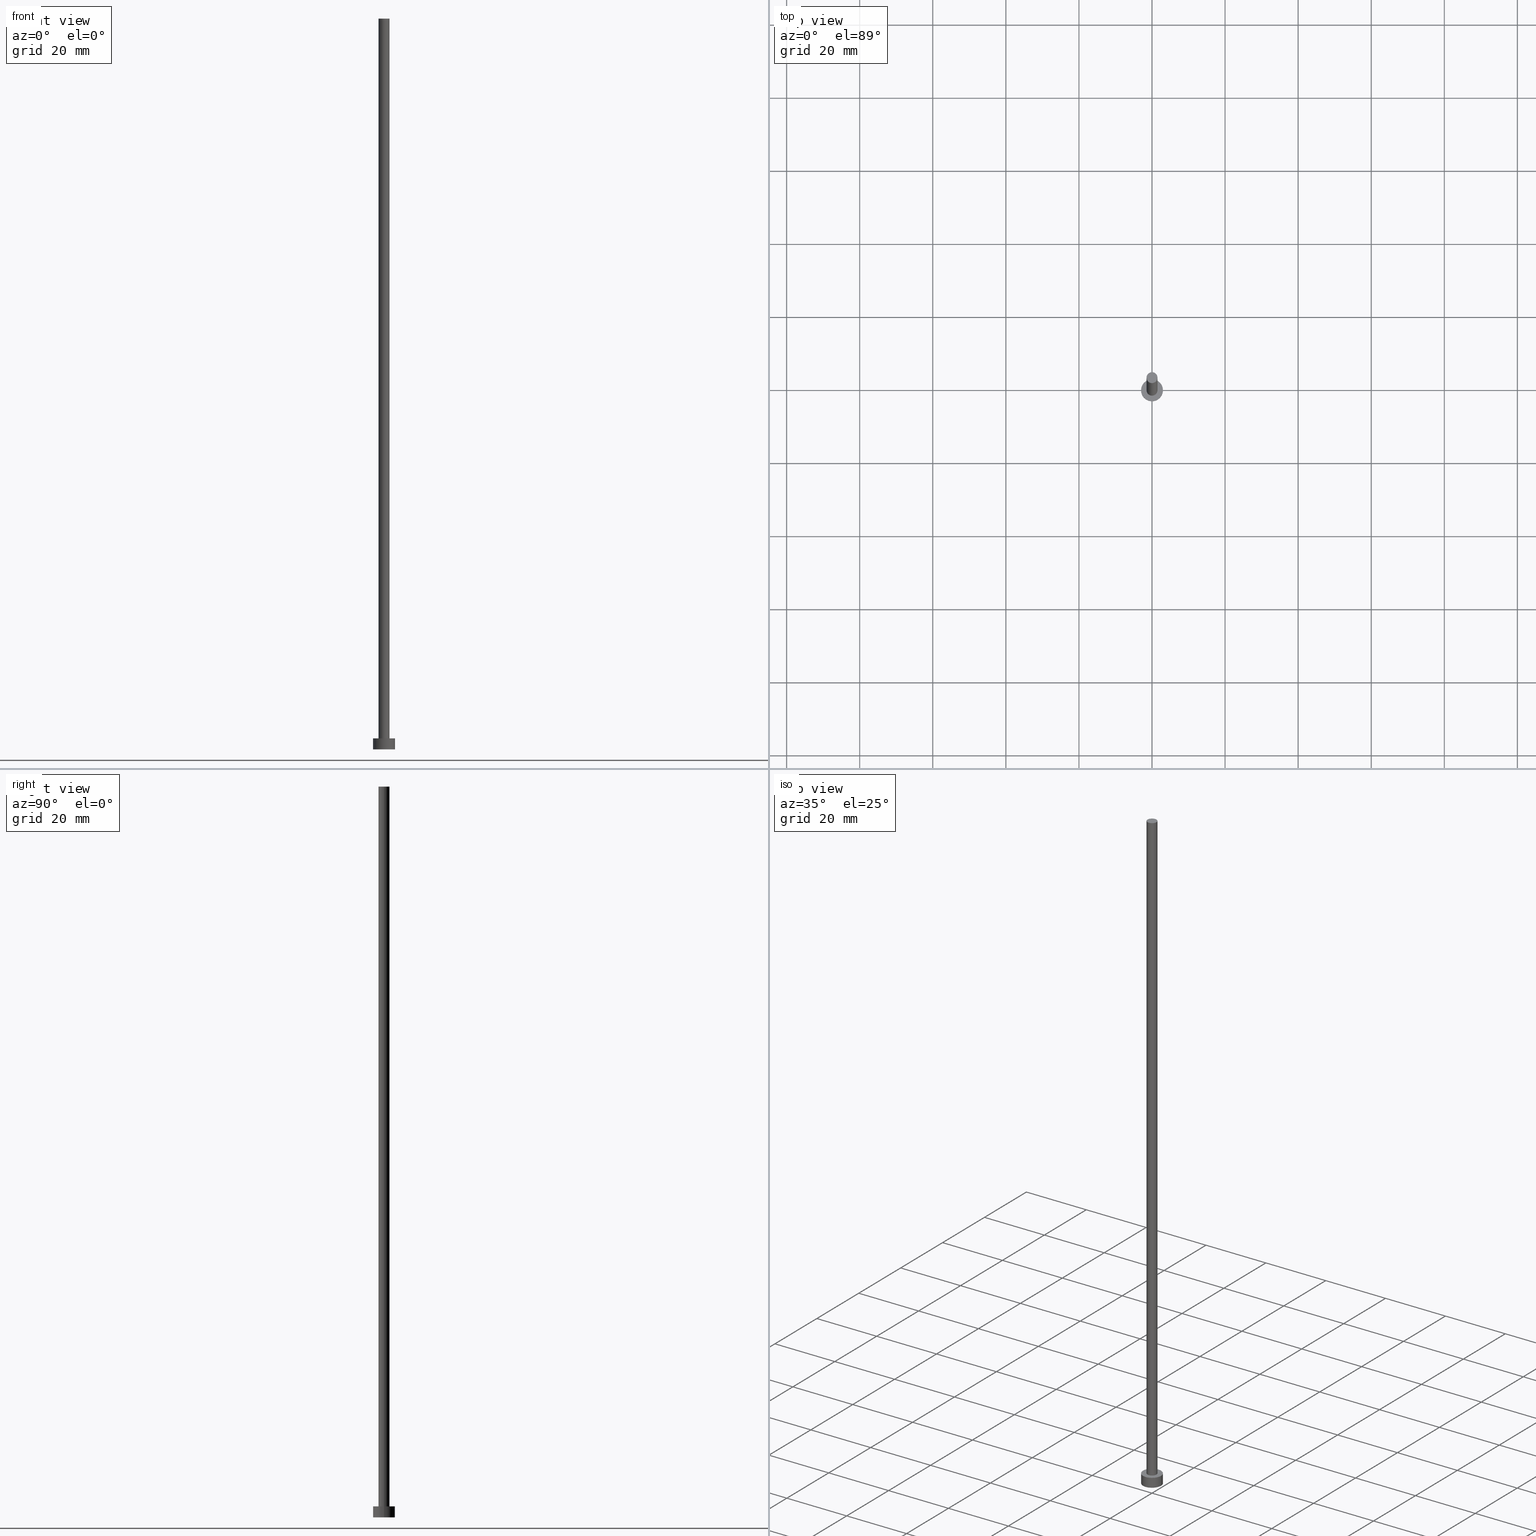
[diagram: canonical four-view strip — front | top / right | iso, engineering-drawing reading convention]
A machine part, canonical four-view strip (front | top / right | iso — engineering-drawing reading convention). The complete STEP part file that produces these views, byte-faithful:
ISO-10303-21;
HEADER;
FILE_DESCRIPTION (( 'STEP AP203' ),
    '1' );
FILE_NAME ('d742.STEP',
    '2023-02-12T12:47:12',
    ( '' ),
    ( '' ),
    'SwSTEP 2.0',
    'SolidWorks 2019',
    '' );
FILE_SCHEMA (( 'CONFIG_CONTROL_DESIGN' ));
ENDSEC;

DATA;
#1 = ORIENTED_EDGE ( 'NONE', *, *, #193, .T. ) ;
#2 = VERTEX_POINT ( 'NONE', #203 ) ;
#3 = APPLICATION_CONTEXT ( 'configuration controlled 3d designs of mechanical parts and assemblies' ) ;
#4 = CIRCLE ( 'NONE', #165, 1.500000000000000222 ) ;
#5 = ADVANCED_BREP_SHAPE_REPRESENTATION ( 'd742', ( #129, #192 ), #102 ) ;
#6 = ORIENTED_EDGE ( 'NONE', *, *, #231, .T. ) ;
#7 = CARTESIAN_POINT ( 'NONE',  ( 0.000000000000000000, 0.000000000000000000, 3.000000000000000000 ) ) ;
#8 = CARTESIAN_POINT ( 'NONE',  ( -1.500000000000000222, 0.000000000000000000, 200.0000000000000000 ) ) ;
#9 = COORDINATED_UNIVERSAL_TIME_OFFSET ( 1, 0, .AHEAD. ) ;
#10 = APPROVAL ( #182, 'NEUR�EN�' ) ;
#11 = ORIENTED_EDGE ( 'NONE', *, *, #237, .F. ) ;
#12 = DIRECTION ( 'NONE',  ( 1.000000000000000000, 0.000000000000000000, 0.000000000000000000 ) ) ;
#13 = DIRECTION ( 'NONE',  ( -0.000000000000000000, -0.000000000000000000, -1.000000000000000000 ) ) ;
#14 = EDGE_CURVE ( 'NONE', #180, #43, #105, .T. ) ;
#15 = CARTESIAN_POINT ( 'NONE',  ( 0.000000000000000000, 0.000000000000000000, 200.0000000000000000 ) ) ;
#16 = ORIENTED_EDGE ( 'NONE', *, *, #154, .F. ) ;
#17 = APPROVAL ( #200, 'NEUR�EN�' ) ;
#18 = CYLINDRICAL_SURFACE ( 'NONE', #219, 3.000000000000000444 ) ;
#19 = CARTESIAN_POINT ( 'NONE',  ( 0.000000000000000000, 0.000000000000000000, 0.000000000000000000 ) ) ;
#20 = ORIENTED_EDGE ( 'NONE', *, *, #135, .F. ) ;
#21 = CARTESIAN_POINT ( 'NONE',  ( 0.000000000000000000, 0.000000000000000000, 200.0000000000000000 ) ) ;
#22 = ADVANCED_FACE ( 'NONE', ( #48 ), #33, .T. ) ;
#23 = AXIS2_PLACEMENT_3D ( 'NONE', #19, #98, #191 ) ;
#24 = VERTEX_POINT ( 'NONE', #31 ) ;
#25 = PRODUCT_DEFINITION_SHAPE ( 'NONE', 'NONE',  #39 ) ;
#26 = APPLICATION_PROTOCOL_DEFINITION ( 'international standard', 'config_control_design', 1994, #3 ) ;
#27 = DATE_AND_TIME ( #162, #233 ) ;
#28 = DATE_AND_TIME ( #52, #84 ) ;
#29 = PERSON_AND_ORGANIZATION_ROLE ( 'design_supplier' ) ;
#30 = APPROVAL_DATE_TIME ( #28, #10 ) ;
#31 = CARTESIAN_POINT ( 'NONE',  ( 3.000000000000000444, 3.673940397442060361E-16, 0.000000000000000000 ) ) ;
#32 = APPROVAL_STATUS ( 'not_yet_approved' ) ;
#33 = PLANE ( 'NONE',  #44 ) ;
#34 = ORIENTED_EDGE ( 'NONE', *, *, #141, .F. ) ;
#35 = CC_DESIGN_PERSON_AND_ORGANIZATION_ASSIGNMENT ( #160, #229, ( #177 ) ) ;
#36 = DIRECTION ( 'NONE',  ( 1.000000000000000000, 0.000000000000000000, 0.000000000000000000 ) ) ;
#37 = AXIS2_PLACEMENT_3D ( 'NONE', #122, #123, #12 ) ;
#38 = CARTESIAN_POINT ( 'NONE',  ( 1.500000000000000222, 1.836970198721030181E-16, 200.0000000000000000 ) ) ;
#39 = PRODUCT_DEFINITION ( 'NEZN�M�', '', #41, #179 ) ;
#40 = VECTOR ( 'NONE', #13, 1000.000000000000000 ) ;
#41 = PRODUCT_DEFINITION_FORMATION_WITH_SPECIFIED_SOURCE ( 'LIBOVOLN�', '', #65, .NOT_KNOWN. ) ;
#42 = CARTESIAN_POINT ( 'NONE',  ( -3.000000000000000444, 0.000000000000000000, 3.000000000000000000 ) ) ;
#43 = VERTEX_POINT ( 'NONE', #184 ) ;
#44 = AXIS2_PLACEMENT_3D ( 'NONE', #93, #185, #169 ) ;
#45 = VECTOR ( 'NONE', #236, 1000.000000000000000 ) ;
#46 = SHAPE_DEFINITION_REPRESENTATION ( #25, #5 ) ;
#47 = DIRECTION ( 'NONE',  ( -1.000000000000000000, 0.000000000000000000, 0.000000000000000000 ) ) ;
#48 = FACE_OUTER_BOUND ( 'NONE', #149, .T. ) ;
#49 = ORIENTED_EDGE ( 'NONE', *, *, #135, .T. ) ;
#50 = PERSON_AND_ORGANIZATION ( #211, #62 ) ;
#51 = APPROVAL_ROLE ( '' ) ;
#52 = CALENDAR_DATE ( 2023, 12, 2 ) ;
#53 = DIRECTION ( 'NONE',  ( -1.000000000000000000, 0.000000000000000000, 0.000000000000000000 ) ) ;
#54 = ORIENTED_EDGE ( 'NONE', *, *, #235, .T. ) ;
#55 = VECTOR ( 'NONE', #136, 1000.000000000000000 ) ;
#56 = LOCAL_TIME ( 13, 47, 12.00000000000000000, #139 ) ;
#57 = DIRECTION ( 'NONE',  ( 1.000000000000000000, 0.000000000000000000, 0.000000000000000000 ) ) ;
#58 = CARTESIAN_POINT ( 'NONE',  ( 0.000000000000000000, 0.000000000000000000, 3.000000000000000000 ) ) ;
#59 = CARTESIAN_POINT ( 'NONE',  ( 3.000000000000000444, 3.673940397442060361E-16, 3.000000000000000000 ) ) ;
#60 = LINE ( 'NONE', #194, #55 ) ;
#61 = ORIENTED_EDGE ( 'NONE', *, *, #112, .F. ) ;
#62 = ORGANIZATION ( 'NEUR�EN�', 'NEUR�EN�', '' ) ;
#63 = CC_DESIGN_PERSON_AND_ORGANIZATION_ASSIGNMENT ( #220, #29, ( #41 ) ) ;
#64 = ORIENTED_EDGE ( 'NONE', *, *, #103, .F. ) ;
#65 = PRODUCT ( 'd742', 'd742', '', ( #168 ) ) ;
#66 = FACE_OUTER_BOUND ( 'NONE', #251, .T. ) ;
#67 = APPROVAL_ROLE ( '' ) ;
#68 = PERSON_AND_ORGANIZATION ( #211, #62 ) ;
#69 = CARTESIAN_POINT ( 'NONE',  ( -1.500000000000000222, 0.000000000000000000, 3.000000000000000000 ) ) ;
#70 = CARTESIAN_POINT ( 'NONE',  ( 3.000000000000000444, 3.673940397442060361E-16, 3.000000000000000000 ) ) ;
#71 = DIRECTION ( 'NONE',  ( -0.000000000000000000, -0.000000000000000000, -1.000000000000000000 ) ) ;
#72 = APPLICATION_PROTOCOL_DEFINITION ( 'international standard', 'config_control_design', 1994, #241 ) ;
#73 = ADVANCED_FACE ( 'NONE', ( #249 ), #18, .T. ) ;
#74 = AXIS2_PLACEMENT_3D ( 'NONE', #58, #152, #131 ) ;
#75 = CC_DESIGN_APPROVAL ( #244, ( #177 ) ) ;
#76 = EDGE_LOOP ( 'NONE', ( #16, #95 ) ) ;
#77 = VERTEX_POINT ( 'NONE', #69 ) ;
#78 = CC_DESIGN_PERSON_AND_ORGANIZATION_ASSIGNMENT ( #163, #127, ( #39 ) ) ;
#79 = LINE ( 'NONE', #173, #45 ) ;
#80 = AXIS2_PLACEMENT_3D ( 'NONE', #146, #91, #226 ) ;
#81 = DIRECTION ( 'NONE',  ( 1.000000000000000000, 0.000000000000000000, 0.000000000000000000 ) ) ;
#82 = ADVANCED_FACE ( 'NONE', ( #183 ), #228, .T. ) ;
#83 = CYLINDRICAL_SURFACE ( 'NONE', #248, 1.500000000000000222 ) ;
#84 = LOCAL_TIME ( 13, 47, 12.00000000000000000, #88 ) ;
#85 = APPROVAL_DATE_TIME ( #250, #17 ) ;
#86 = ORIENTED_EDGE ( 'NONE', *, *, #103, .T. ) ;
#87 = CALENDAR_DATE ( 2023, 12, 2 ) ;
#88 = COORDINATED_UNIVERSAL_TIME_OFFSET ( 1, 0, .AHEAD. ) ;
#89 = VERTEX_POINT ( 'NONE', #223 ) ;
#90 = DIRECTION ( 'NONE',  ( 0.000000000000000000, 0.000000000000000000, 1.000000000000000000 ) ) ;
#91 = DIRECTION ( 'NONE',  ( 0.000000000000000000, 0.000000000000000000, 1.000000000000000000 ) ) ;
#92 = PERSON_AND_ORGANIZATION_ROLE ( 'creator' ) ;
#93 = CARTESIAN_POINT ( 'NONE',  ( 0.000000000000000000, 0.000000000000000000, 200.0000000000000000 ) ) ;
#94 =( NAMED_UNIT ( * ) PLANE_ANGLE_UNIT ( ) SI_UNIT ( $, .RADIAN. ) );
#95 = ORIENTED_EDGE ( 'NONE', *, *, #193, .F. ) ;
#96 = CIRCLE ( 'NONE', #80, 3.000000000000000444 ) ;
#97 = CARTESIAN_POINT ( 'NONE',  ( 0.000000000000000000, 0.000000000000000000, 3.000000000000000000 ) ) ;
#98 = DIRECTION ( 'NONE',  ( 0.000000000000000000, 0.000000000000000000, 1.000000000000000000 ) ) ;
#99 = UNCERTAINTY_MEASURE_WITH_UNIT (LENGTH_MEASURE( 1.000000000000000082E-05 ), #158, 'distance_accuracy_value', 'NONE');
#100 = DIRECTION ( 'NONE',  ( 0.000000000000000000, 0.000000000000000000, 1.000000000000000000 ) ) ;
#101 = CC_DESIGN_SECURITY_CLASSIFICATION ( #177, ( #41 ) ) ;
#102 =( GEOMETRIC_REPRESENTATION_CONTEXT ( 3 ) GLOBAL_UNCERTAINTY_ASSIGNED_CONTEXT ( ( #99 ) ) GLOBAL_UNIT_ASSIGNED_CONTEXT ( ( #158, #94, #143 ) ) REPRESENTATION_CONTEXT ( 'NONE', 'WORKASPACE' ) );
#103 = EDGE_CURVE ( 'NONE', #161, #253, #254, .T. ) ;
#104 = DIRECTION ( 'NONE',  ( -0.000000000000000000, -0.000000000000000000, -1.000000000000000000 ) ) ;
#105 = CIRCLE ( 'NONE', #246, 1.500000000000000222 ) ;
#106 = AXIS2_PLACEMENT_3D ( 'NONE', #7, #140, #175 ) ;
#107 = DIRECTION ( 'NONE',  ( 1.000000000000000000, 0.000000000000000000, 0.000000000000000000 ) ) ;
#108 = ORIENTED_EDGE ( 'NONE', *, *, #235, .F. ) ;
#109 = DIRECTION ( 'NONE',  ( 0.000000000000000000, 0.000000000000000000, 1.000000000000000000 ) ) ;
#110 = DIRECTION ( 'NONE',  ( 0.000000000000000000, 0.000000000000000000, 1.000000000000000000 ) ) ;
#111 = ORIENTED_EDGE ( 'NONE', *, *, #112, .T. ) ;
#112 = EDGE_CURVE ( 'NONE', #253, #24, #164, .T. ) ;
#113 = DIRECTION ( 'NONE',  ( -1.000000000000000000, 0.000000000000000000, 0.000000000000000000 ) ) ;
#114 = EDGE_CURVE ( 'NONE', #253, #161, #96, .T. ) ;
#115 = DIRECTION ( 'NONE',  ( 0.000000000000000000, 0.000000000000000000, 1.000000000000000000 ) ) ;
#116 = FACE_OUTER_BOUND ( 'NONE', #151, .T. ) ;
#117 = ADVANCED_FACE ( 'NONE', ( #202, #166 ), #252, .T. ) ;
#118 = ORIENTED_EDGE ( 'NONE', *, *, #156, .F. ) ;
#119 = FACE_OUTER_BOUND ( 'NONE', #76, .T. ) ;
#120 = CALENDAR_DATE ( 2023, 12, 2 ) ;
#121 = CIRCLE ( 'NONE', #155, 3.000000000000000444 ) ;
#122 = CARTESIAN_POINT ( 'NONE',  ( 0.000000000000000000, 0.000000000000000000, 3.000000000000000000 ) ) ;
#123 = DIRECTION ( 'NONE',  ( 0.000000000000000000, 0.000000000000000000, 1.000000000000000000 ) ) ;
#124 = SECURITY_CLASSIFICATION_LEVEL ( 'unclassified' ) ;
#125 = EDGE_LOOP ( 'NONE', ( #118, #49, #6, #11 ) ) ;
#126 = AXIS2_PLACEMENT_3D ( 'NONE', #15, #144, #113 ) ;
#127 = PERSON_AND_ORGANIZATION_ROLE ( 'creator' ) ;
#128 = ORIENTED_EDGE ( 'NONE', *, *, #156, .T. ) ;
#129 = MANIFOLD_SOLID_BREP ( 'P�idat vysunut�m3', #209 ) ;
#130 = APPROVAL_PERSON_ORGANIZATION ( #50, #244, #67 ) ;
#131 = DIRECTION ( 'NONE',  ( 1.000000000000000000, 0.000000000000000000, -0.000000000000000000 ) ) ;
#132 = CC_DESIGN_DATE_AND_TIME_ASSIGNMENT ( #27, #205, ( #177 ) ) ;
#133 = CARTESIAN_POINT ( 'NONE',  ( 0.000000000000000000, 0.000000000000000000, 0.000000000000000000 ) ) ;
#134 = EDGE_LOOP ( 'NONE', ( #61, #64, #54, #201 ) ) ;
#135 = EDGE_CURVE ( 'NONE', #43, #89, #172, .T. ) ;
#136 = DIRECTION ( 'NONE',  ( -0.000000000000000000, -0.000000000000000000, -1.000000000000000000 ) ) ;
#137 = CIRCLE ( 'NONE', #23, 3.000000000000000444 ) ;
#138 = ORIENTED_EDGE ( 'NONE', *, *, #14, .F. ) ;
#139 = COORDINATED_UNIVERSAL_TIME_OFFSET ( 1, 0, .AHEAD. ) ;
#140 = DIRECTION ( 'NONE',  ( -0.000000000000000000, -0.000000000000000000, -1.000000000000000000 ) ) ;
#141 = EDGE_CURVE ( 'NONE', #77, #89, #255, .T. ) ;
#142 = DATE_AND_TIME ( #120, #56 ) ;
#143 =( NAMED_UNIT ( * ) SI_UNIT ( $, .STERADIAN. ) SOLID_ANGLE_UNIT ( ) );
#144 = DIRECTION ( 'NONE',  ( -0.000000000000000000, -0.000000000000000000, -1.000000000000000000 ) ) ;
#145 = DATE_AND_TIME ( #245, #234 ) ;
#146 = CARTESIAN_POINT ( 'NONE',  ( 0.000000000000000000, 0.000000000000000000, 3.000000000000000000 ) ) ;
#147 = PERSON_AND_ORGANIZATION ( #211, #62 ) ;
#148 = PERSON_AND_ORGANIZATION ( #211, #62 ) ;
#149 = EDGE_LOOP ( 'NONE', ( #207, #128 ) ) ;
#150 = ORIENTED_EDGE ( 'NONE', *, *, #237, .T. ) ;
#151 = EDGE_LOOP ( 'NONE', ( #20, #138, #150, #157 ) ) ;
#152 = DIRECTION ( 'NONE',  ( 0.000000000000000000, 0.000000000000000000, 1.000000000000000000 ) ) ;
#153 = APPROVAL_PERSON_ORGANIZATION ( #148, #10, #227 ) ;
#154 = EDGE_CURVE ( 'NONE', #2, #24, #137, .T. ) ;
#155 = AXIS2_PLACEMENT_3D ( 'NONE', #133, #195, #107 ) ;
#156 = EDGE_CURVE ( 'NONE', #43, #180, #171, .T. ) ;
#157 = ORIENTED_EDGE ( 'NONE', *, *, #141, .T. ) ;
#158 =( LENGTH_UNIT ( ) NAMED_UNIT ( * ) SI_UNIT ( .MILLI., .METRE. ) );
#159 = PLANE ( 'NONE',  #224 ) ;
#160 = PERSON_AND_ORGANIZATION ( #211, #62 ) ;
#161 = VERTEX_POINT ( 'NONE', #42 ) ;
#162 = CALENDAR_DATE ( 2023, 12, 2 ) ;
#163 = PERSON_AND_ORGANIZATION ( #211, #62 ) ;
#164 = LINE ( 'NONE', #70, #40 ) ;
#165 = AXIS2_PLACEMENT_3D ( 'NONE', #239, #110, #81 ) ;
#166 = FACE_OUTER_BOUND ( 'NONE', #186, .T. ) ;
#167 = DIRECTION ( 'NONE',  ( 1.000000000000000000, 0.000000000000000000, 0.000000000000000000 ) ) ;
#168 = MECHANICAL_CONTEXT ( 'NONE', #241, 'mechanical' ) ;
#169 = DIRECTION ( 'NONE',  ( 1.000000000000000000, 0.000000000000000000, -0.000000000000000000 ) ) ;
#170 = ADVANCED_FACE ( 'NONE', ( #66 ), #176, .T. ) ;
#171 = CIRCLE ( 'NONE', #199, 1.500000000000000222 ) ;
#172 = LINE ( 'NONE', #38, #187 ) ;
#173 = CARTESIAN_POINT ( 'NONE',  ( -1.500000000000000222, 0.000000000000000000, 200.0000000000000000 ) ) ;
#174 = LOCAL_TIME ( 13, 47, 12.00000000000000000, #9 ) ;
#175 = DIRECTION ( 'NONE',  ( -1.000000000000000000, 0.000000000000000000, 0.000000000000000000 ) ) ;
#176 = CYLINDRICAL_SURFACE ( 'NONE', #106, 3.000000000000000444 ) ;
#177 = SECURITY_CLASSIFICATION ( '', '', #124 ) ;
#178 = CARTESIAN_POINT ( 'NONE',  ( 0.000000000000000000, 0.000000000000000000, 0.000000000000000000 ) ) ;
#179 = DESIGN_CONTEXT ( 'detailed design', #3, 'design' ) ;
#180 = VERTEX_POINT ( 'NONE', #8 ) ;
#181 = APPROVAL_DATE_TIME ( #142, #244 ) ;
#182 = APPROVAL_STATUS ( 'not_yet_approved' ) ;
#183 = FACE_OUTER_BOUND ( 'NONE', #125, .T. ) ;
#184 = CARTESIAN_POINT ( 'NONE',  ( 1.500000000000000222, 1.836970198721030181E-16, 200.0000000000000000 ) ) ;
#185 = DIRECTION ( 'NONE',  ( 0.000000000000000000, 0.000000000000000000, 1.000000000000000000 ) ) ;
#186 = EDGE_LOOP ( 'NONE', ( #86, #238 ) ) ;
#187 = VECTOR ( 'NONE', #208, 1000.000000000000000 ) ;
#188 = CC_DESIGN_APPROVAL ( #17, ( #41 ) ) ;
#189 = ORIENTED_EDGE ( 'NONE', *, *, #231, .F. ) ;
#190 = CC_DESIGN_PERSON_AND_ORGANIZATION_ASSIGNMENT ( #68, #243, ( #65 ) ) ;
#191 = DIRECTION ( 'NONE',  ( 1.000000000000000000, 0.000000000000000000, 0.000000000000000000 ) ) ;
#192 = AXIS2_PLACEMENT_3D ( 'NONE', #178, #90, #167 ) ;
#193 = EDGE_CURVE ( 'NONE', #24, #2, #121, .T. ) ;
#194 = CARTESIAN_POINT ( 'NONE',  ( -3.000000000000000444, 0.000000000000000000, 3.000000000000000000 ) ) ;
#195 = DIRECTION ( 'NONE',  ( 0.000000000000000000, 0.000000000000000000, 1.000000000000000000 ) ) ;
#196 = CC_DESIGN_DATE_AND_TIME_ASSIGNMENT ( #145, #197, ( #39 ) ) ;
#197 = DATE_TIME_ROLE ( 'creation_date' ) ;
#198 = EDGE_LOOP ( 'NONE', ( #34, #189 ) ) ;
#199 = AXIS2_PLACEMENT_3D ( 'NONE', #21, #100, #57 ) ;
#200 = APPROVAL_STATUS ( 'not_yet_approved' ) ;
#201 = ORIENTED_EDGE ( 'NONE', *, *, #154, .T. ) ;
#202 = FACE_BOUND ( 'NONE', #198, .T. ) ;
#203 = CARTESIAN_POINT ( 'NONE',  ( -3.000000000000000444, 0.000000000000000000, 0.000000000000000000 ) ) ;
#204 = APPROVAL_PERSON_ORGANIZATION ( #213, #17, #51 ) ;
#205 = DATE_TIME_ROLE ( 'classification_date' ) ;
#206 = DIRECTION ( 'NONE',  ( 1.000000000000000000, 0.000000000000000000, 0.000000000000000000 ) ) ;
#207 = ORIENTED_EDGE ( 'NONE', *, *, #14, .T. ) ;
#208 = DIRECTION ( 'NONE',  ( -0.000000000000000000, -0.000000000000000000, -1.000000000000000000 ) ) ;
#209 = CLOSED_SHELL ( 'NONE', ( #82, #170, #73, #117, #210, #218, #22 ) ) ;
#210 = ADVANCED_FACE ( 'NONE', ( #119 ), #159, .F. ) ;
#211 = PERSON ( 'NEUR�EN�', 'NEUR�EN�', 'NEUR�EN�', ('NEUR�EN�'), ('NEUR�EN�'), ('NEUR�EN�') ) ;
#212 = CARTESIAN_POINT ( 'NONE',  ( 0.000000000000000000, 0.000000000000000000, 3.000000000000000000 ) ) ;
#213 = PERSON_AND_ORGANIZATION ( #211, #62 ) ;
#214 = AXIS2_PLACEMENT_3D ( 'NONE', #212, #115, #36 ) ;
#215 = CC_DESIGN_PERSON_AND_ORGANIZATION_ASSIGNMENT ( #147, #92, ( #41 ) ) ;
#216 = CARTESIAN_POINT ( 'NONE',  ( 0.000000000000000000, 0.000000000000000000, 200.0000000000000000 ) ) ;
#217 = ORIENTED_EDGE ( 'NONE', *, *, #114, .F. ) ;
#218 = ADVANCED_FACE ( 'NONE', ( #116 ), #83, .T. ) ;
#219 = AXIS2_PLACEMENT_3D ( 'NONE', #97, #71, #53 ) ;
#220 = PERSON_AND_ORGANIZATION ( #211, #62 ) ;
#221 = DIRECTION ( 'NONE',  ( 1.000000000000000000, 0.000000000000000000, -0.000000000000000000 ) ) ;
#222 = PRODUCT_RELATED_PRODUCT_CATEGORY ( 'detail', '', ( #65 ) ) ;
#223 = CARTESIAN_POINT ( 'NONE',  ( 1.500000000000000222, 1.836970198721030181E-16, 3.000000000000000000 ) ) ;
#224 = AXIS2_PLACEMENT_3D ( 'NONE', #240, #109, #221 ) ;
#225 = CC_DESIGN_APPROVAL ( #10, ( #39 ) ) ;
#226 = DIRECTION ( 'NONE',  ( 1.000000000000000000, 0.000000000000000000, 0.000000000000000000 ) ) ;
#227 = APPROVAL_ROLE ( '' ) ;
#228 = CYLINDRICAL_SURFACE ( 'NONE', #126, 1.500000000000000222 ) ;
#229 = PERSON_AND_ORGANIZATION_ROLE ( 'classification_officer' ) ;
#230 = COORDINATED_UNIVERSAL_TIME_OFFSET ( 1, 0, .AHEAD. ) ;
#231 = EDGE_CURVE ( 'NONE', #89, #77, #4, .T. ) ;
#232 = CARTESIAN_POINT ( 'NONE',  ( 0.000000000000000000, 0.000000000000000000, 200.0000000000000000 ) ) ;
#233 = LOCAL_TIME ( 13, 47, 12.00000000000000000, #242 ) ;
#234 = LOCAL_TIME ( 13, 47, 12.00000000000000000, #230 ) ;
#235 = EDGE_CURVE ( 'NONE', #161, #2, #60, .T. ) ;
#236 = DIRECTION ( 'NONE',  ( -0.000000000000000000, -0.000000000000000000, -1.000000000000000000 ) ) ;
#237 = EDGE_CURVE ( 'NONE', #180, #77, #79, .T. ) ;
#238 = ORIENTED_EDGE ( 'NONE', *, *, #114, .T. ) ;
#239 = CARTESIAN_POINT ( 'NONE',  ( 0.000000000000000000, 0.000000000000000000, 3.000000000000000000 ) ) ;
#240 = CARTESIAN_POINT ( 'NONE',  ( 0.000000000000000000, 0.000000000000000000, 0.000000000000000000 ) ) ;
#241 = APPLICATION_CONTEXT ( 'configuration controlled 3d designs of mechanical parts and assemblies' ) ;
#242 = COORDINATED_UNIVERSAL_TIME_OFFSET ( 1, 0, .AHEAD. ) ;
#243 = PERSON_AND_ORGANIZATION_ROLE ( 'design_owner' ) ;
#244 = APPROVAL ( #32, 'NEUR�EN�' ) ;
#245 = CALENDAR_DATE ( 2023, 12, 2 ) ;
#246 = AXIS2_PLACEMENT_3D ( 'NONE', #232, #247, #206 ) ;
#247 = DIRECTION ( 'NONE',  ( 0.000000000000000000, 0.000000000000000000, 1.000000000000000000 ) ) ;
#248 = AXIS2_PLACEMENT_3D ( 'NONE', #216, #104, #47 ) ;
#249 = FACE_OUTER_BOUND ( 'NONE', #134, .T. ) ;
#250 = DATE_AND_TIME ( #87, #174 ) ;
#251 = EDGE_LOOP ( 'NONE', ( #217, #111, #1, #108 ) ) ;
#252 = PLANE ( 'NONE',  #74 ) ;
#253 = VERTEX_POINT ( 'NONE', #59 ) ;
#254 = CIRCLE ( 'NONE', #37, 3.000000000000000444 ) ;
#255 = CIRCLE ( 'NONE', #214, 1.500000000000000222 ) ;
ENDSEC;
END-ISO-10303-21;
